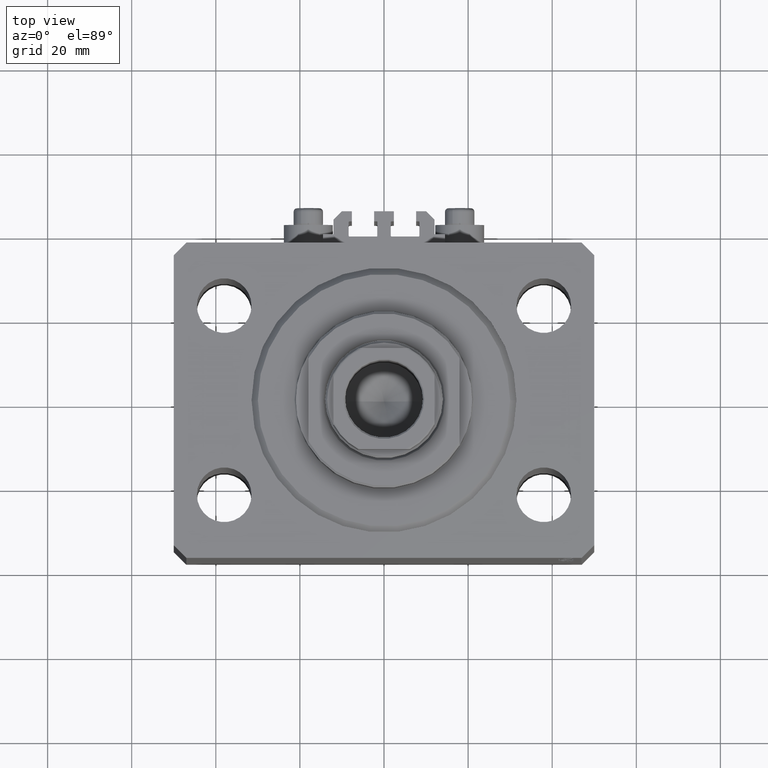
[diagram: clean part render]
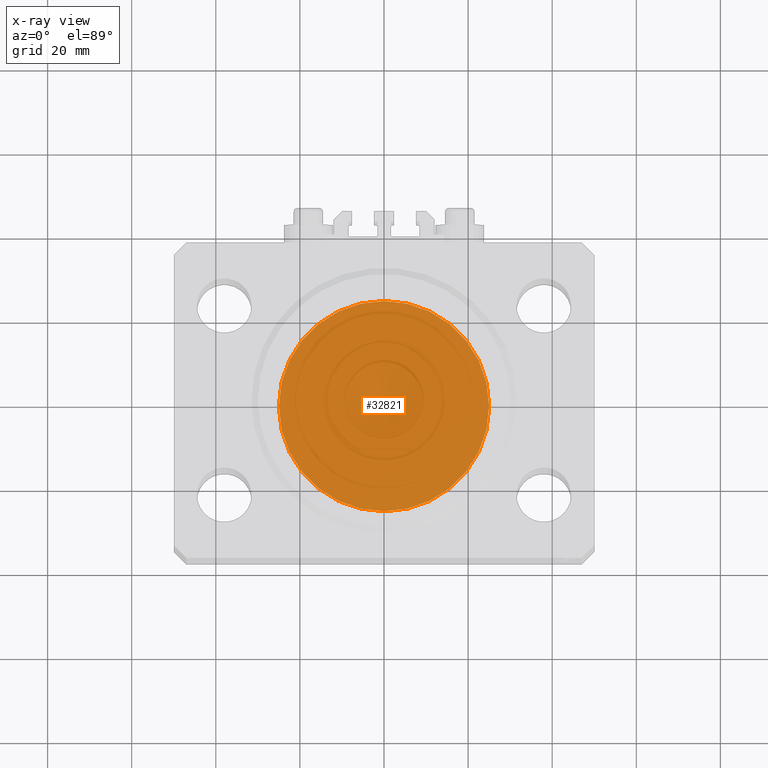
[diagram: x-ray — body ghosted, one internal face saturated and labeled with its STEP entity id]
A machine part, top view, then the same camera in x-ray: the body is ghosted and one INTERNAL B-rep face — a face not visible from any outside direction — is saturated and labeled: STEP entity #32821.
In plain terms, the highlighted planar face has unit normal (0, 0, 1).
Its self-contained STEP definition (entity closure, byte-faithful):
#814 = CARTESIAN_POINT ( 'NONE',  ( -25.00000000000000000, 0.000000000000000000, 0.000000000000000000 ) ) ;
#2399 = CARTESIAN_POINT ( 'NONE',  ( 0.000000000000000000, 0.000000000000000000, 0.000000000000000000 ) ) ;
#3211 = AXIS2_PLACEMENT_3D ( 'NONE', #11926, #4494, #15540 ) ;
#4098 = VERTEX_POINT ( 'NONE', #18100 ) ;
#4494 = DIRECTION ( 'NONE',  ( 0.000000000000000000, 0.000000000000000000, 1.000000000000000000 ) ) ;
#5512 = PLANE ( 'NONE',  #20830 ) ;
#10045 = EDGE_CURVE ( 'NONE', #32434, #4098, #20763, .T. ) ;
#10601 = EDGE_LOOP ( 'NONE', ( #30780, #24078 ) ) ;
#11926 = CARTESIAN_POINT ( 'NONE',  ( 0.000000000000000000, 0.000000000000000000, 0.000000000000000000 ) ) ;
#13150 = CIRCLE ( 'NONE', #3211, 25.00000000000000000 ) ;
#15540 = DIRECTION ( 'NONE',  ( 1.000000000000000000, 0.000000000000000000, 0.000000000000000000 ) ) ;
#18100 = CARTESIAN_POINT ( 'NONE',  ( 25.00000000000000000, 3.061616997868383043E-15, 0.000000000000000000 ) ) ;
#19963 = DIRECTION ( 'NONE',  ( 1.000000000000000000, 0.000000000000000000, 0.000000000000000000 ) ) ;
#20140 = DIRECTION ( 'NONE',  ( 1.000000000000000000, 0.000000000000000000, -0.000000000000000000 ) ) ;
#20763 = CIRCLE ( 'NONE', #25357, 25.00000000000000000 ) ;
#20830 = AXIS2_PLACEMENT_3D ( 'NONE', #2399, #27334, #20140 ) ;
#23780 = CARTESIAN_POINT ( 'NONE',  ( 0.000000000000000000, 0.000000000000000000, 0.000000000000000000 ) ) ;
#24078 = ORIENTED_EDGE ( 'NONE', *, *, #33362, .F. ) ;
#25357 = AXIS2_PLACEMENT_3D ( 'NONE', #23780, #30968, #19963 ) ;
#27334 = DIRECTION ( 'NONE',  ( 0.000000000000000000, 0.000000000000000000, 1.000000000000000000 ) ) ;
#30780 = ORIENTED_EDGE ( 'NONE', *, *, #10045, .F. ) ;
#30968 = DIRECTION ( 'NONE',  ( 0.000000000000000000, 0.000000000000000000, 1.000000000000000000 ) ) ;
#32434 = VERTEX_POINT ( 'NONE', #814 ) ;
#32821 = ADVANCED_FACE ( 'NONE', ( #42876 ), #5512, .F. ) ;
#33362 = EDGE_CURVE ( 'NONE', #4098, #32434, #13150, .T. ) ;
#42876 = FACE_OUTER_BOUND ( 'NONE', #10601, .T. ) ;